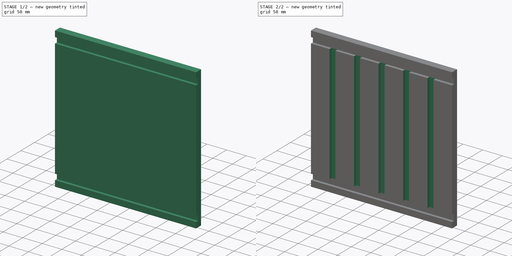
[diagram: build sequence overview — one tinted view per stage of 2, left to right]
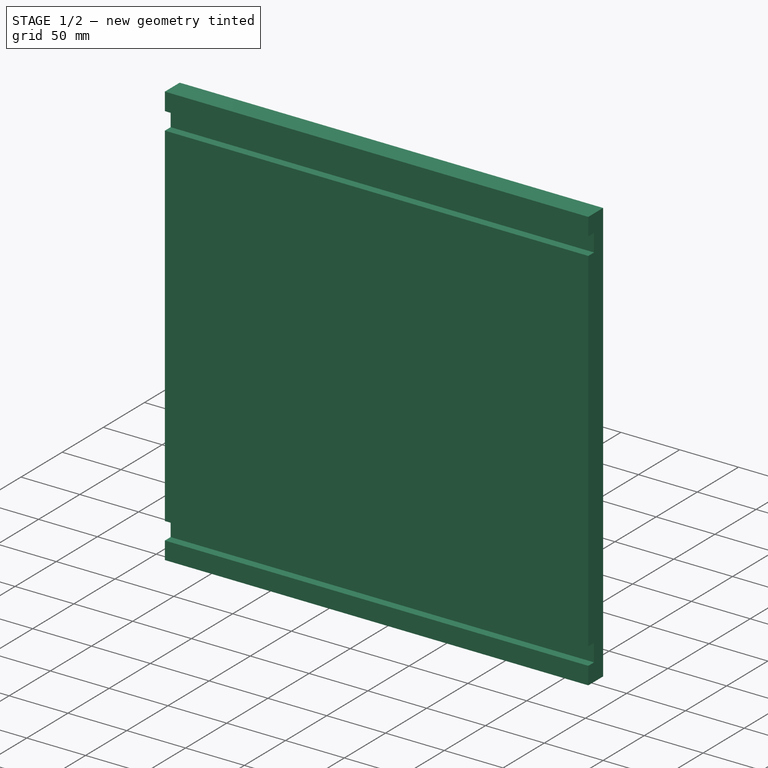
[diagram: stage 1 of 2 — iso view after this stage's code; geometry added in this stage tinted green]
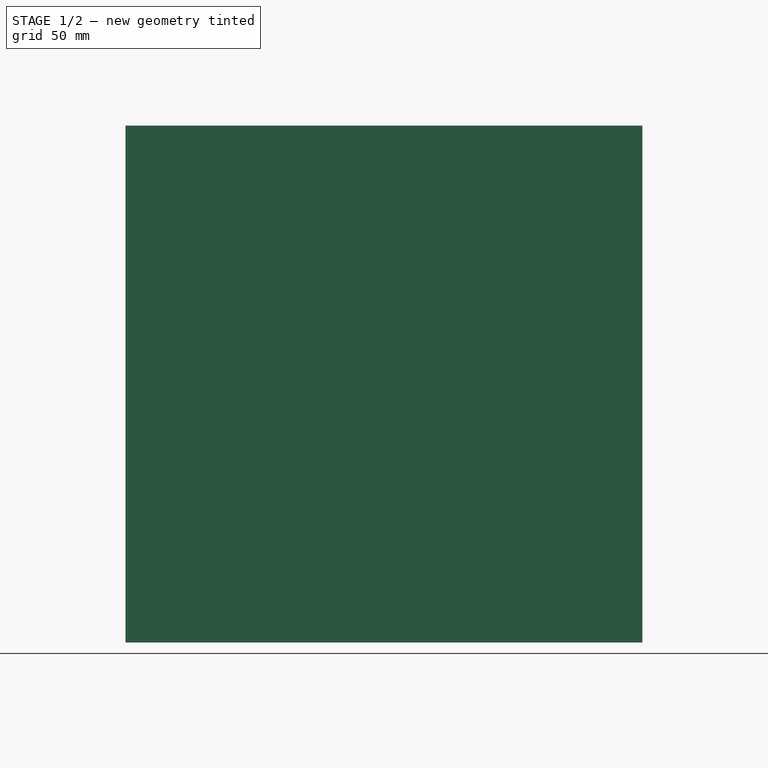
[diagram: stage 1 of 2 — front view after this stage's code; geometry added in this stage tinted green]
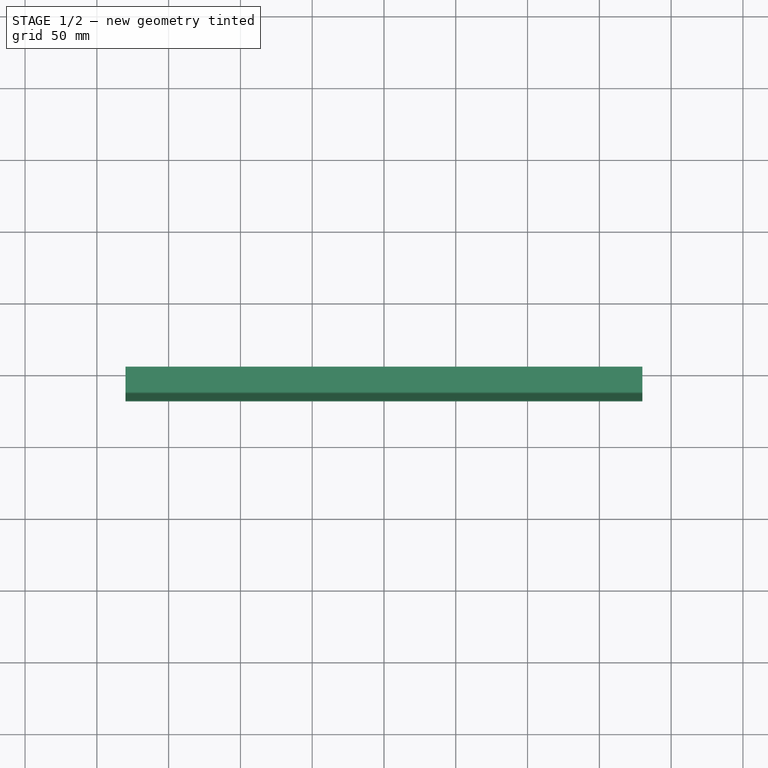
[diagram: stage 1 of 2 — top view after this stage's code; geometry added in this stage tinted green]
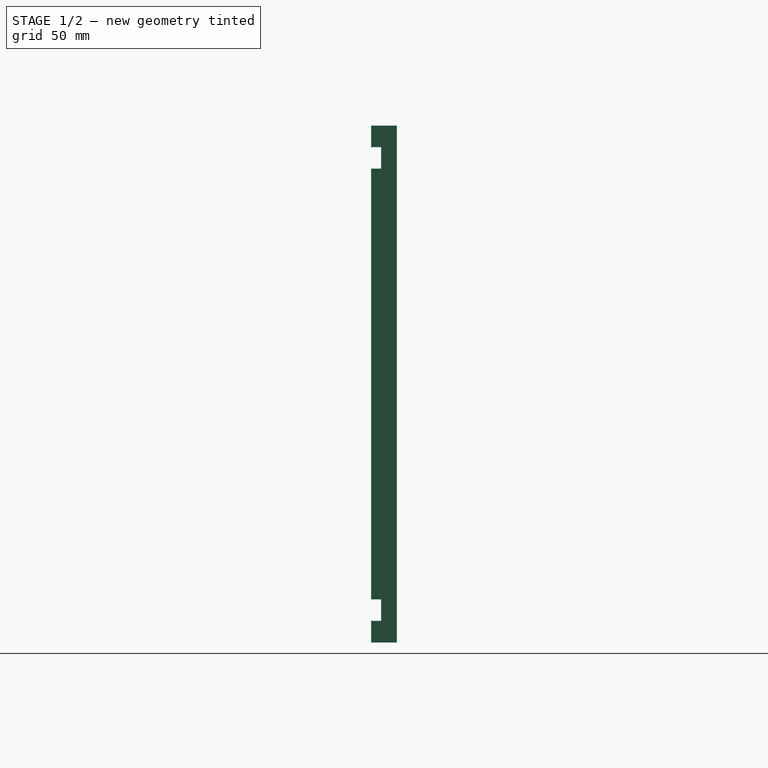
[diagram: stage 1 of 2 — right view after this stage's code; geometry added in this stage tinted green]
FCSTD DOCUMENT  (FreeCAD 0.21R33771 (Git))
Label: waste board
License: All rights reserved
LicenseURL: http://en.wikipedia.org/wiki/All_rights_reserved
objects: Sketcher::SketchObject×3, PartDesign::Pocket×2, PartDesign::Pad×1, PartDesign::Body×1
note: 10 computed .brp shape members not serialized (recipe doc carries the construction recipe); baked Part::Feature solids carry a one-line shape summary decoded from their .brp

FEATURE [Sketcher::SketchObject] Sketch
  FullyConstrained = true
  MapMode = 5
  Placement = pos=(0,0,0) rot=(1,0,0;1.5708rad)
  Support = -> [XZ_Plane]
  sketch-geometry (4):
    g0: LineSegment StartX=-180 StartY=180 StartZ=0 EndX=180 EndY=180 EndZ=0
    g1: LineSegment StartX=180 StartY=180 StartZ=0 EndX=180 EndY=-180 EndZ=0
    g2: LineSegment StartX=180 StartY=-180 StartZ=0 EndX=-180 EndY=-180 EndZ=0
    g3: LineSegment StartX=-180 StartY=-180 StartZ=0 EndX=-180 EndY=180 EndZ=0
  constraints (12):
    c: Coincident(g0,g1)
    c: Coincident(g1,g2)
    c: Coincident(g2,g3)
    c: Coincident(g3,g0)
    c: Horizontal(g0)
    c: Horizontal(g2)
    c: Vertical(g1)
    c: Vertical(g3)
    c: DistanceX(g0,g0) = 360
    c: DistanceY(g1,g1) = 360
    c: Distance(g-1,g3) = 180
    c: Distance(g-1,g0) = 180
FEATURE [PartDesign::Pad] Pad
  Direction = (0,-1,2e-16)
  Length = 18
  Length2 = 10
  Placement = pos=(0,0,0) rot=(1,0,0;1.5708rad)
  Profile = -> Sketch
  ReferenceAxis = -> Sketch [N_Axis]
  Type = 0
FEATURE [Sketcher::SketchObject] Sketch001
  ExternalGeometry = -> [Pad]
  FullyConstrained = true
  MapMode = 5
  Placement = pos=(180,0,0) rot=(0.707107,0,0.707107;3.14159rad)
  Support = -> [Pad]
  sketch-geometry (8):
    g0: LineSegment StartX=-165 StartY=18 StartZ=0 EndX=-150 EndY=18 EndZ=0
    g1: LineSegment StartX=-150 StartY=18 StartZ=0 EndX=-150 EndY=11 EndZ=0
    g2: LineSegment StartX=-150 StartY=11 StartZ=0 EndX=-165 EndY=11 EndZ=0
    g3: LineSegment StartX=-165 StartY=11 StartZ=0 EndX=-165 EndY=18 EndZ=0
    g4: LineSegment StartX=150 StartY=18 StartZ=0 EndX=165 EndY=18 EndZ=0
    g5: LineSegment StartX=165 StartY=18 StartZ=0 EndX=165 EndY=11 EndZ=0
    g6: LineSegment StartX=165 StartY=11 StartZ=0 EndX=150 EndY=11 EndZ=0
    g7: LineSegment StartX=150 StartY=11 StartZ=0 EndX=150 EndY=18 EndZ=0
  constraints (25):
    c: Coincident(g0,g1)
    c: Coincident(g1,g2)
    c: Coincident(g2,g3)
    c: Coincident(g3,g0)
    c: Horizontal(g0)
    c: Horizontal(g2)
    c: Vertical(g1)
    c: Vertical(g3)
    c: Coincident(g4,g5)
    c: Coincident(g5,g6)
    c: Coincident(g6,g7)
    c: Coincident(g7,g4)
    c: Horizontal(g4)
    c: Horizontal(g6)
    c: Vertical(g5)
    c: Vertical(g7)
    c: DistanceX(g-4,g-4) = 0
    c: Distance(g0,g-4) = 15
    c: DistanceX(g2,g2) = 15
    c: PointOnObject(g0,g-3)
    c: DistanceY(g1,g1) = 7
    c: DistanceX(g6,g6) = 15
    c: DistanceY(g5,g5) = 7
    c: PointOnObject(g4,g-3)
    c: Distance(g4,g-5) = 15
FEATURE [PartDesign::Pocket] Pocket
  BaseFeature = -> Pad
  Direction = (-1,0,2e-16)
  Length = 400
  Length2 = 5
  Placement = pos=(0,0,0) rot=(1,0,0;1.5708rad)
  Profile = -> Sketch001
  ReferenceAxis = -> Sketch001 [N_Axis]
  Type = 0
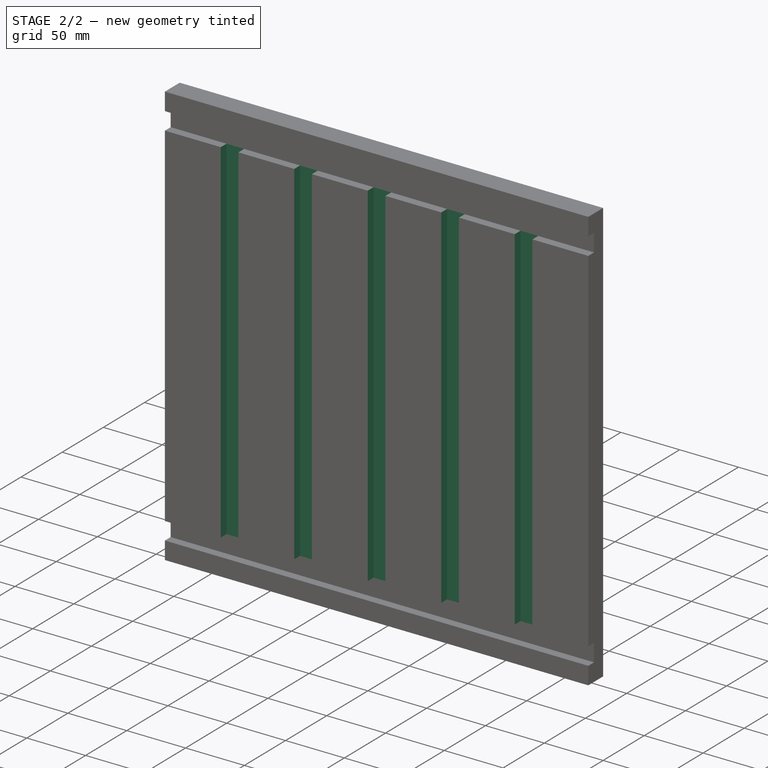
[diagram: stage 2 of 2 — iso view after this stage's code; geometry added in this stage tinted green]
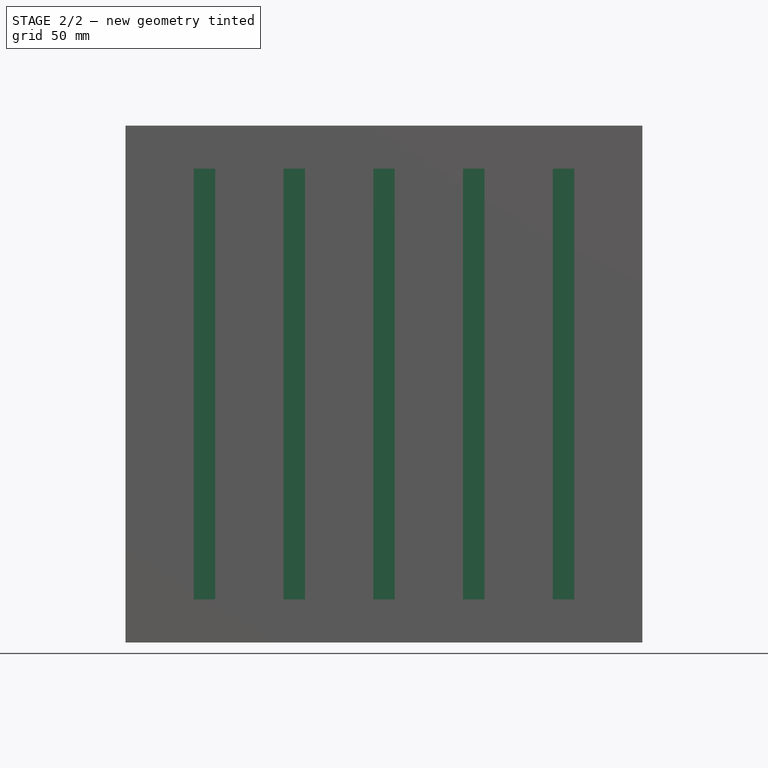
[diagram: stage 2 of 2 — front view after this stage's code; geometry added in this stage tinted green]
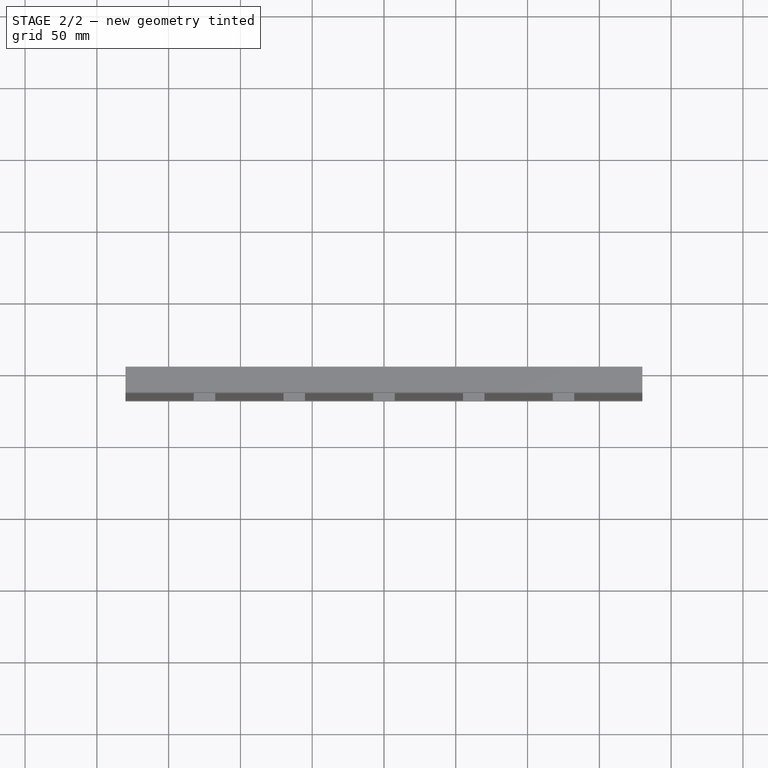
[diagram: stage 2 of 2 — top view after this stage's code; geometry added in this stage tinted green]
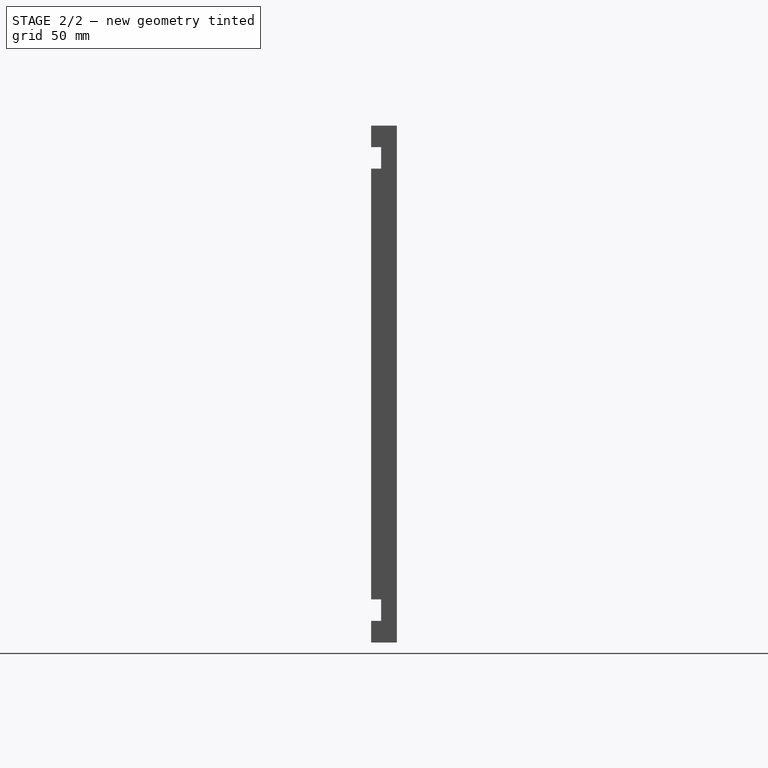
[diagram: stage 2 of 2 — right view after this stage's code; geometry added in this stage tinted green]
FEATURE [Sketcher::SketchObject] Sketch002
  ExternalGeometry = -> [Pocket]
  FullyConstrained = true
  MapMode = 5
  Placement = pos=(0,-18,4e-15) rot=(1,0,0;1.5708rad)
  Support = -> [Pocket]
  sketch-geometry (20):
    g0: LineSegment StartX=117.5 StartY=150 StartZ=0 EndX=132.5 EndY=150 EndZ=0
    g1: LineSegment StartX=132.5 StartY=150 StartZ=0 EndX=132.5 EndY=-150 EndZ=0
    g2: LineSegment StartX=132.5 StartY=-150 StartZ=0 EndX=117.5 EndY=-150 EndZ=0
    g3: LineSegment StartX=117.5 StartY=-150 StartZ=0 EndX=117.5 EndY=150 EndZ=0
    g4: LineSegment StartX=-132.5 StartY=150 StartZ=0 EndX=-117.5 EndY=150 EndZ=0
    g5: LineSegment StartX=-117.5 StartY=150 StartZ=0 EndX=-117.5 EndY=-150 EndZ=0
    g6: LineSegment StartX=-117.5 StartY=-150 StartZ=0 EndX=-132.5 EndY=-150 EndZ=0
    g7: LineSegment StartX=-132.5 StartY=-150 StartZ=0 EndX=-132.5 EndY=150 EndZ=0
    g8: LineSegment StartX=-70 StartY=150 StartZ=0 EndX=-55 EndY=150 EndZ=0
    g9: LineSegment StartX=-55 StartY=150 StartZ=0 EndX=-55 EndY=-150 EndZ=0
    g10: LineSegment StartX=-55 StartY=-150 StartZ=0 EndX=-70 EndY=-150 EndZ=0
    g11: LineSegment StartX=-70 StartY=-150 StartZ=0 EndX=-70 EndY=150 EndZ=0
    g12: LineSegment StartX=-7.5 StartY=150 StartZ=0 EndX=7.5 EndY=150 EndZ=0
    g13: LineSegment StartX=7.5 StartY=150 StartZ=0 EndX=7.5 EndY=-150 EndZ=0
    g14: LineSegment StartX=7.5 StartY=-150 StartZ=0 EndX=-7.5 EndY=-150 EndZ=0
    g15: LineSegment StartX=-7.5 StartY=-150 StartZ=0 EndX=-7.5 EndY=150 EndZ=0
    g16: LineSegment StartX=55 StartY=150 StartZ=0 EndX=70 EndY=150 EndZ=0
    g17: LineSegment StartX=70 StartY=150 StartZ=0 EndX=70 EndY=-150 EndZ=0
    g18: LineSegment StartX=70 StartY=-150 StartZ=0 EndX=55 EndY=-150 EndZ=0
    g19: LineSegment StartX=55 StartY=-150 StartZ=0 EndX=55 EndY=150 EndZ=0
  constraints (60):
    c: Coincident(g0,g1)
    c: Coincident(g1,g2)
    c: Coincident(g2,g3)
    c: Coincident(g3,g0)
    c: Horizontal(g0)
    c: Horizontal(g2)
    c: Vertical(g1)
    c: Vertical(g3)
    c: Coincident(g4,g5)
    c: Coincident(g5,g6)
    c: Coincident(g6,g7)
    c: Coincident(g7,g4)
    c: Horizontal(g4)
    c: Horizontal(g6)
    c: Vertical(g5)
    c: Vertical(g7)
    c: Coincident(g8,g9)
    c: Coincident(g9,g10)
    c: Coincident(g10,g11)
    c: Coincident(g11,g8)
    c: Horizontal(g8)
    c: Horizontal(g10)
    c: Vertical(g9)
    c: Vertical(g11)
    c: Coincident(g12,g13)
    c: Coincident(g13,g14)
    c: Coincident(g14,g15)
    c: Coincident(g15,g12)
    c: Horizontal(g12)
    c: Horizontal(g14)
    c: Vertical(g13)
    c: Vertical(g15)
    c: Coincident(g16,g17)
    c: Coincident(g17,g18)
    c: Coincident(g18,g19)
    c: Coincident(g19,g16)
    c: Horizontal(g16)
    c: Horizontal(g18)
    c: Vertical(g17)
    c: Vertical(g19)
    c: PointOnObject(g4,g-5)
    c: PointOnObject(g8,g-5)
    c: PointOnObject(g12,g-5)
    c: PointOnObject(g16,g-5)
    c: PointOnObject(g0,g-5)
    c: PointOnObject(g6,g-6)
    c: PointOnObject(g10,g-6)
    c: PointOnObject(g14,g-6)
    c: PointOnObject(g18,g-6)
    c: PointOnObject(g2,g-6)
    c: DistanceX(g4,g4) = 15
    c: DistanceX(g8,g8) = 15
    c: DistanceX(g12,g12) = 15
    c: DistanceX(g16,g16) = 15
    c: DistanceX(g0,g0) = 15
    c: Distance(g0,g-4) = 47.5
    c: Distance(g0,g16) = 47.5
    c: Distance(g16,g12) = 47.5
    c: Distance(g12,g8) = 47.5
    c: Distance(g8,g4) = 47.5
FEATURE [PartDesign::Pocket] Pocket001
  BaseFeature = -> Pocket
  Direction = (0,1,-2e-16)
  Length = 7
  Length2 = 5
  Placement = pos=(0,0,0) rot=(1,0,0;1.5708rad)
  Profile = -> Sketch002
  ReferenceAxis = -> Sketch002 [N_Axis]
  Type = 0
FEATURE [PartDesign::Body] Body
  Group = -> [Sketch,Pad,Sketch001,Pocket,Sketch002,Pocket001]
  Origin = -> Origin
  Tip = -> Pocket001
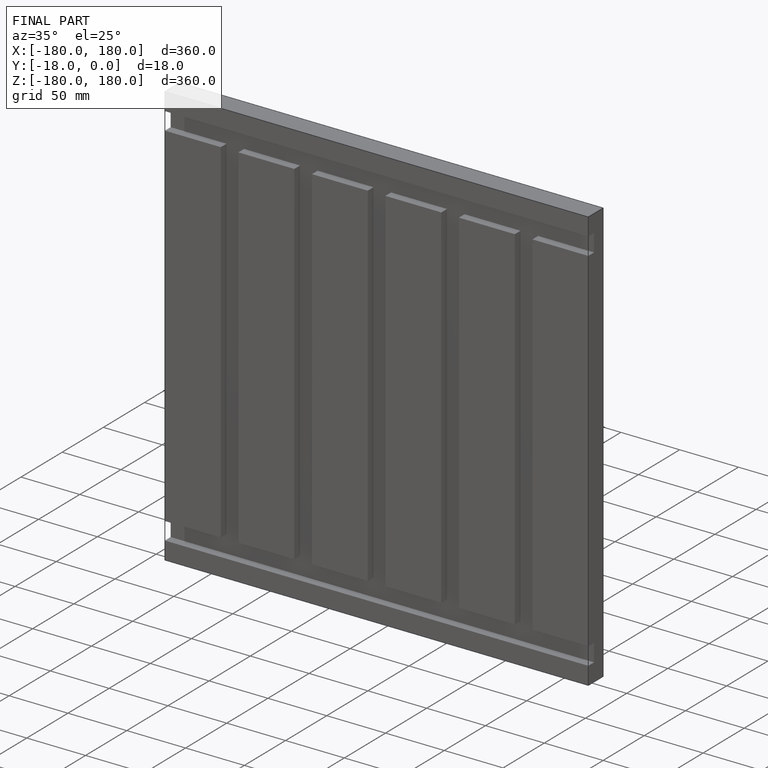
[diagram: finished part — iso view with bounding-box wireframe]
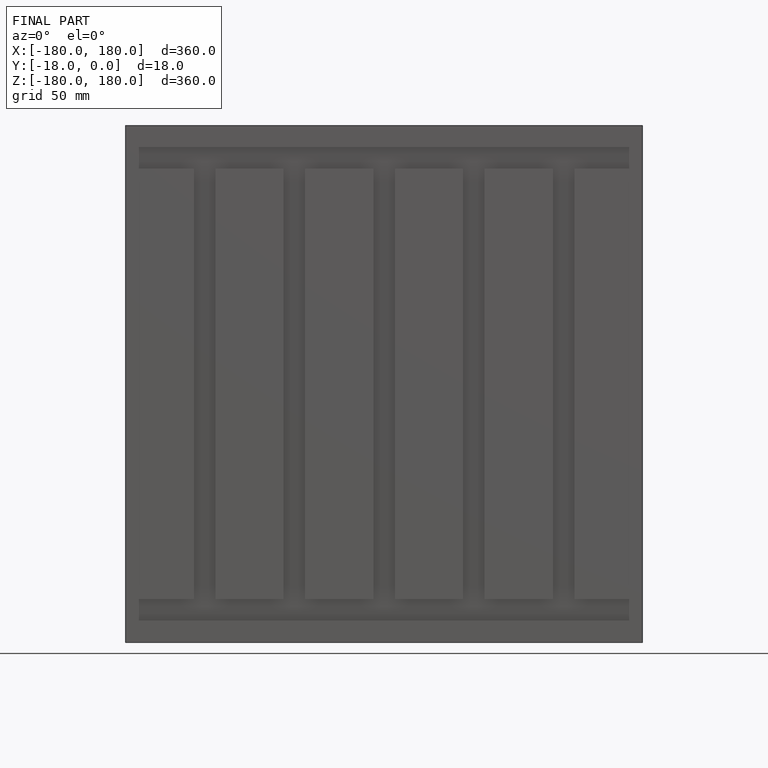
[diagram: finished part — front view with bounding-box wireframe]
